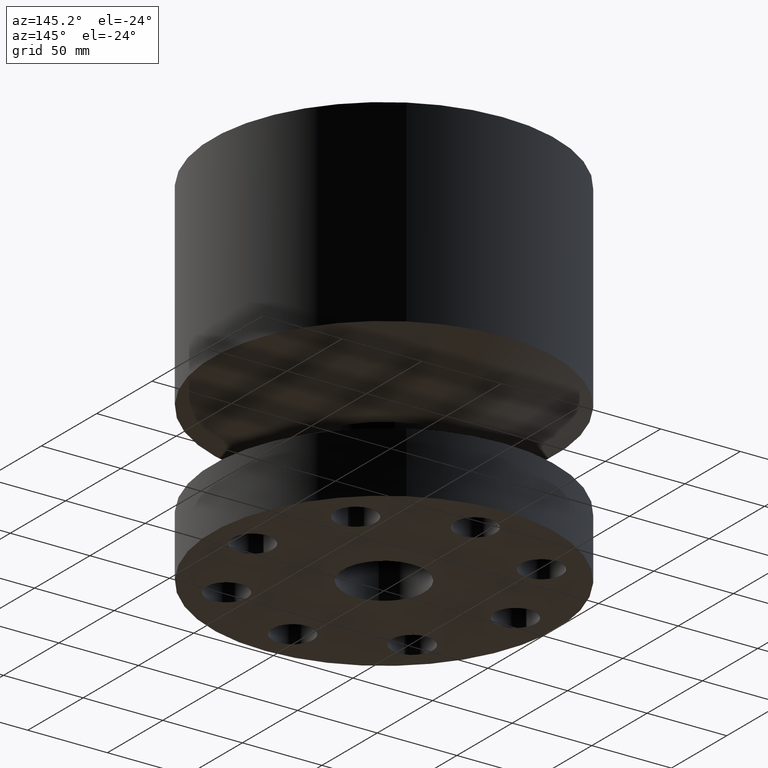
[diagram: clean part render]
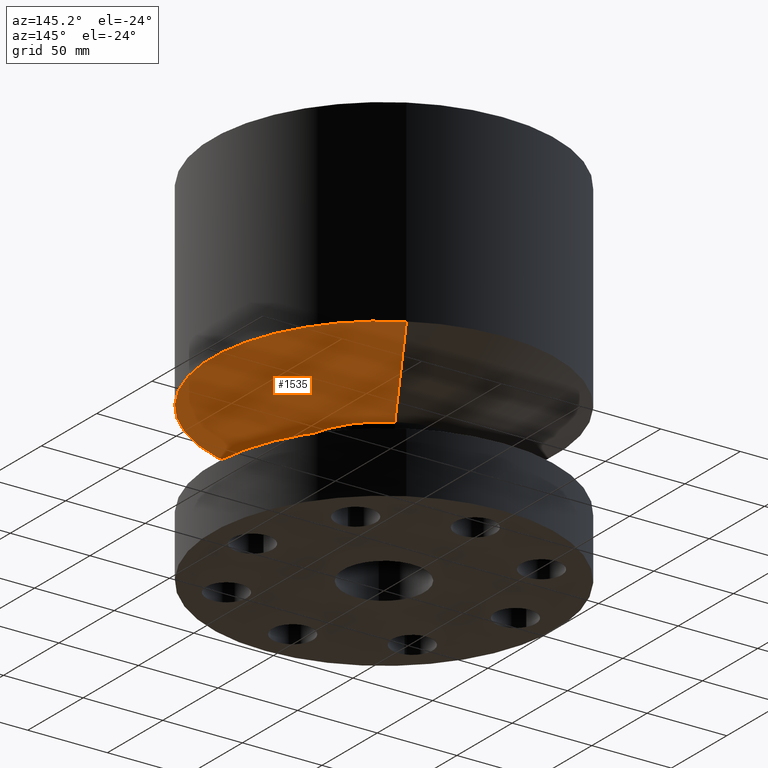
[diagram: same view with one face highlighted and labeled with its STEP entity id]
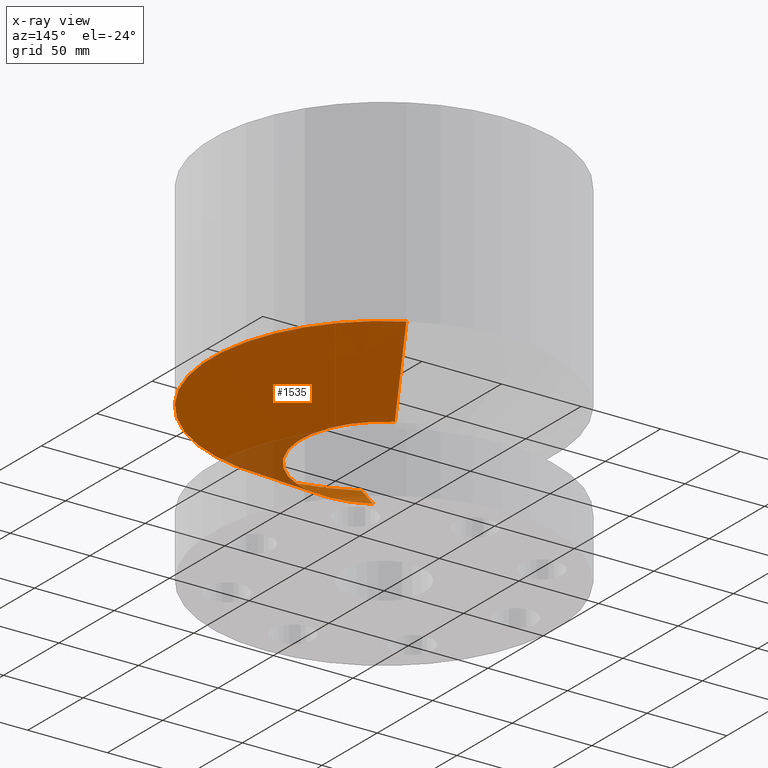
[diagram: x-ray of the same camera — body ghosted, the highlighted face saturated]
A machine part, auxiliary view. The second image highlights one B-rep face of the part: STEP entity #1535.
The next image is the same camera in x-ray: the body ghosted, the highlighted face saturated — about 10% of this face is hidden behind the body in this view.
In plain terms, the highlighted conical surface has half-angle 60 deg.
Its self-contained STEP definition (entity closure, byte-faithful):
#963=AXIS2_PLACEMENT_3D('Circle Axis2P3D',#961,#962,$) ;
#1508=AXIS2_PLACEMENT_3D('Cone Axis2P3D',#1505,#1506,#1507) ;
#1519=AXIS2_PLACEMENT_3D('Circle Axis2P3D',#1517,#1518,$) ;
#958=CARTESIAN_POINT('Vertex',(0.987616609529,1.8078200775,2.62000000001)) ;
#961=CARTESIAN_POINT('Axis2P3D Location',(0.,0.,2.62000000001)) ;
#965=CARTESIAN_POINT('Vertex',(-0.987616609529,-1.8078200775,2.62000000001)) ;
#1505=CARTESIAN_POINT('Axis2P3D Location',(0.,0.,2.62000000001)) ;
#1510=CARTESIAN_POINT('Line Origine',(1.5125875743,2.76877298278,3.25219854478)) ;
#1514=CARTESIAN_POINT('Vertex',(2.03755853908,3.72972588805,3.88439708954)) ;
#1517=CARTESIAN_POINT('Axis2P3D Location',(0.,0.,3.88439708954)) ;
#1521=CARTESIAN_POINT('Vertex',(-2.03755853908,-3.72972588805,3.88439708954)) ;
#1524=CARTESIAN_POINT('Line Origine',(-1.5125875743,-2.76877298278,3.25219854478)) ;
#962=DIRECTION('Axis2P3D Direction',(0.,0.,-0.0393700787402)) ;
#1506=DIRECTION('Axis2P3D Direction',(-0.,-0.,0.0393700787402)) ;
#1507=DIRECTION('Axis2P3D XDirection',(0.0188750212049,0.0345504945626,0.)) ;
#1511=DIRECTION('Vector Direction',(0.0163462478604,0.0299216060045,0.0196850393701)) ;
#1518=DIRECTION('Axis2P3D Direction',(-0.,0.,0.0393700787402)) ;
#1525=DIRECTION('Vector Direction',(-0.0163462478604,-0.0299216060045,0.0196850393701)) ;
#1512=VECTOR('Line Direction',#1511,0.0393700787402) ;
#1526=VECTOR('Line Direction',#1525,0.0393700787402) ;
#1530=ORIENTED_EDGE('',*,*,#967,.F.) ;
#1531=ORIENTED_EDGE('',*,*,#1516,.T.) ;
#1532=ORIENTED_EDGE('',*,*,#1523,.T.) ;
#1533=ORIENTED_EDGE('',*,*,#1528,.F.) ;
#1535=ADVANCED_FACE('PartBody',(#1534),#1509,.T.) ;
#964=CIRCLE('generated circle',#963,2.06000000001) ;
#1520=CIRCLE('generated circle',#1519,4.25000000002) ;
#1509=CONICAL_SURFACE('Cone',#1508,2.06000000001,1.0471975512) ;
#967=EDGE_CURVE('',#959,#966,#964,.T.) ;
#1516=EDGE_CURVE('',#959,#1515,#1513,.T.) ;
#1523=EDGE_CURVE('',#1515,#1522,#1520,.F.) ;
#1528=EDGE_CURVE('',#966,#1522,#1527,.T.) ;
#1529=EDGE_LOOP('',(#1530,#1531,#1532,#1533)) ;
#1534=FACE_OUTER_BOUND('',#1529,.T.) ;
#1513=LINE('Line',#1510,#1512) ;
#1527=LINE('Line',#1524,#1526) ;
#959=VERTEX_POINT('',#958) ;
#966=VERTEX_POINT('',#965) ;
#1515=VERTEX_POINT('',#1514) ;
#1522=VERTEX_POINT('',#1521) ;